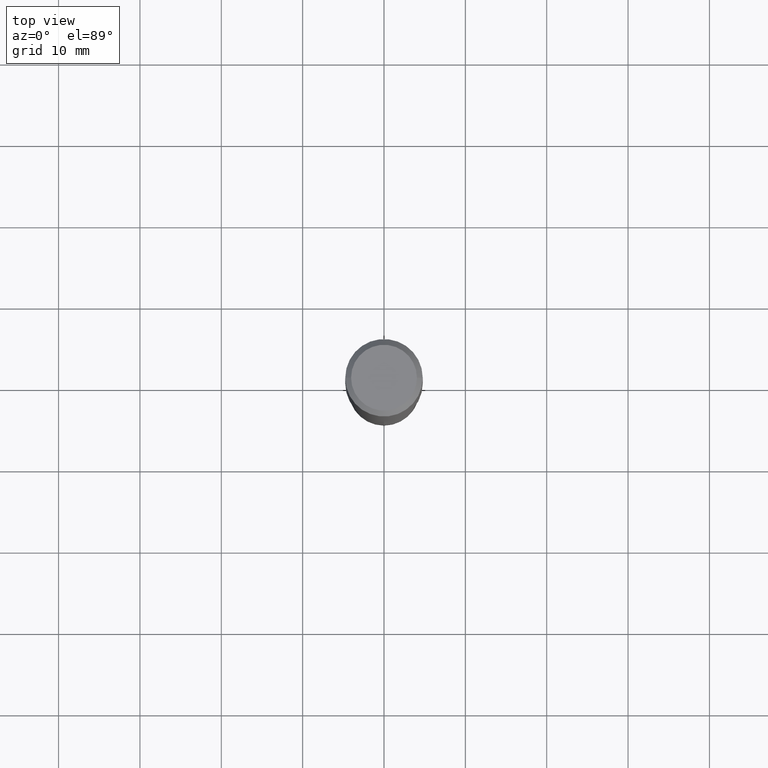
[diagram: clean part render]
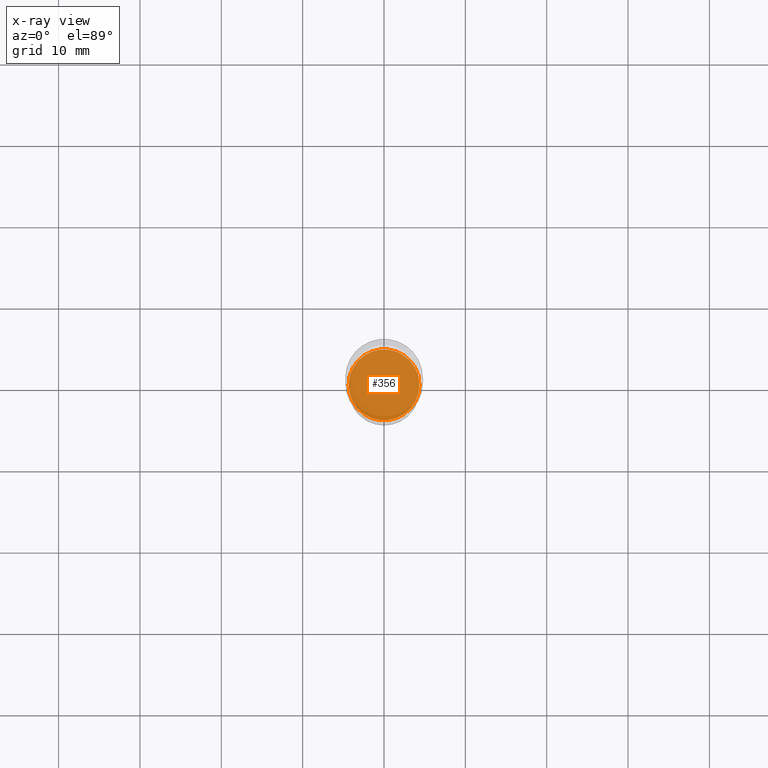
[diagram: x-ray — body ghosted, one internal face saturated and labeled with its STEP entity id]
A machine part, top view, then the same camera in x-ray: the body is ghosted and one INTERNAL B-rep face — a face not visible from any outside direction — is saturated and labeled: STEP entity #356.
In plain terms, the highlighted planar face has unit normal (-0, 0, 1).
Its self-contained STEP definition (entity closure, byte-faithful):
#15 = EDGE_LOOP ( 'NONE', ( #319, #32 ) ) ;
#16 = DIRECTION ( 'NONE',  ( -2.438088387897960049E-29, 3.491481338843145188E-15, 1.000000000000000000 ) ) ;
#28 = CIRCLE ( 'NONE', #37, 0.1713999999999999690 ) ;
#32 = ORIENTED_EDGE ( 'NONE', *, *, #364, .F. ) ;
#37 = AXIS2_PLACEMENT_3D ( 'NONE', #163, #416, #304 ) ;
#56 = DIRECTION ( 'NONE',  ( -2.445468806185136597E-29, 3.491481338843145583E-15, 1.000000000000000000 ) ) ;
#84 = AXIS2_PLACEMENT_3D ( 'NONE', #392, #56, #279 ) ;
#96 = CARTESIAN_POINT ( 'NONE',  ( 0.1713999999999999690, -8.179842480641715822E-15, -1.999999999999999778 ) ) ;
#130 = FACE_OUTER_BOUND ( 'NONE', #15, .T. ) ;
#163 = CARTESIAN_POINT ( 'NONE',  ( 4.890937612370272633E-29, -6.982962677686290376E-15, -1.999999999999999778 ) ) ;
#170 = PLANE ( 'NONE',  #346 ) ;
#173 = CARTESIAN_POINT ( 'NONE',  ( 4.890937612370272633E-29, -6.982962677686290376E-15, -1.999999999999999778 ) ) ;
#270 = EDGE_CURVE ( 'NONE', #365, #404, #28, .T. ) ;
#279 = DIRECTION ( 'NONE',  ( 1.000000000000000000, -6.982962677686265133E-15, 0.000000000000000000 ) ) ;
#298 = CIRCLE ( 'NONE', #84, 0.1713999999999999690 ) ;
#304 = DIRECTION ( 'NONE',  ( 1.000000000000000000, -6.982962677686265133E-15, 0.000000000000000000 ) ) ;
#316 = CARTESIAN_POINT ( 'NONE',  ( -0.1713999999999999690, -5.762443201419367479E-15, -1.999999999999999778 ) ) ;
#319 = ORIENTED_EDGE ( 'NONE', *, *, #270, .F. ) ;
#321 = DIRECTION ( 'NONE',  ( 1.000000000000000000, -6.982962677686265922E-15, 4.876176775795935793E-29 ) ) ;
#346 = AXIS2_PLACEMENT_3D ( 'NONE', #173, #16, #321 ) ;
#356 = ADVANCED_FACE ( 'NONE', ( #130 ), #170, .F. ) ;
#364 = EDGE_CURVE ( 'NONE', #404, #365, #298, .T. ) ;
#365 = VERTEX_POINT ( 'NONE', #96 ) ;
#392 = CARTESIAN_POINT ( 'NONE',  ( 4.890937612370272633E-29, -6.982962677686290376E-15, -1.999999999999999778 ) ) ;
#404 = VERTEX_POINT ( 'NONE', #316 ) ;
#416 = DIRECTION ( 'NONE',  ( -2.445468806185136597E-29, 3.491481338843145583E-15, 1.000000000000000000 ) ) ;